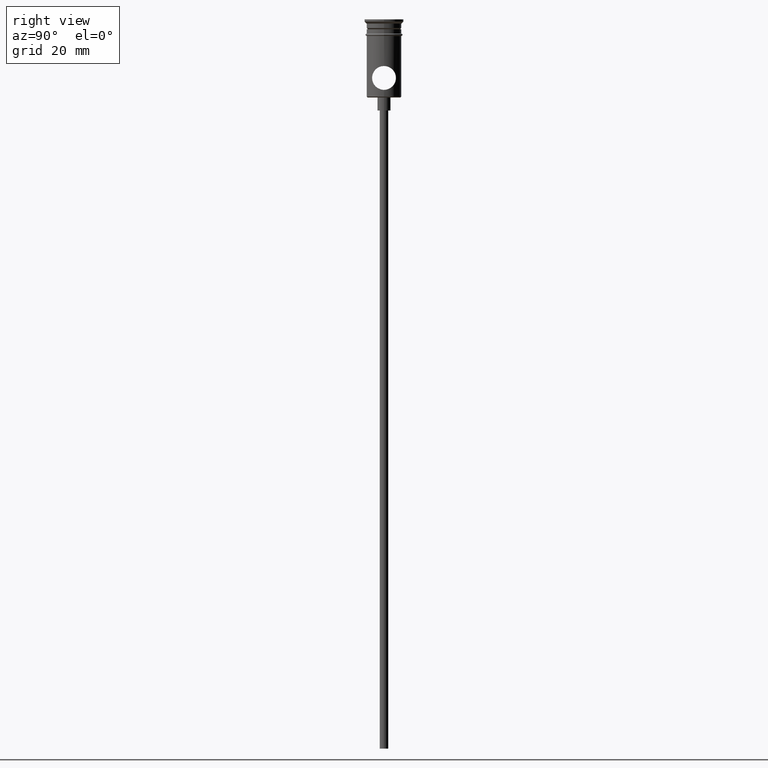
[diagram: clean part render]
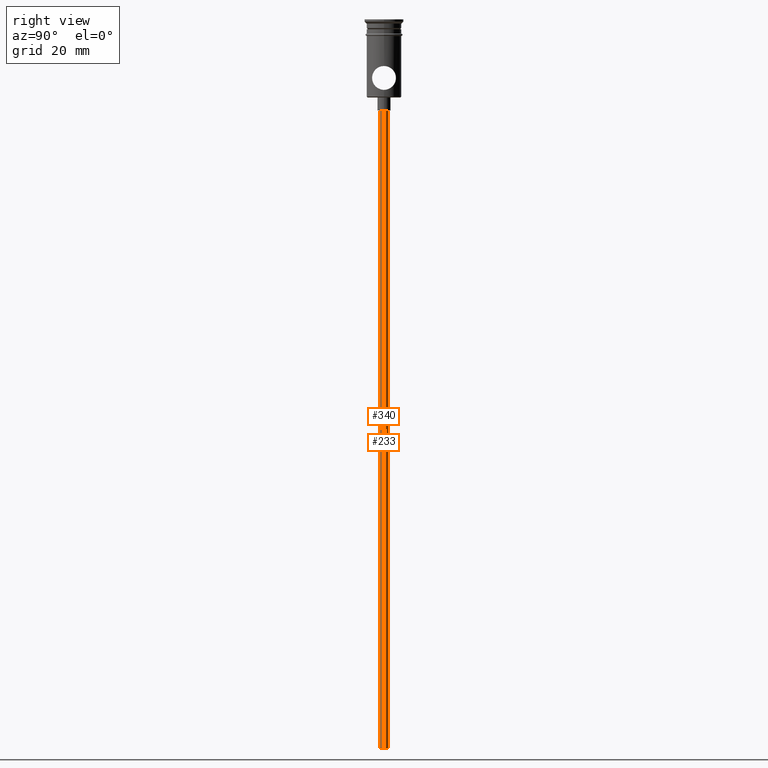
[diagram: same view with one multi-face feature highlighted, each face labeled with its STEP entity id]
A machine part, right view. The highlighted faces form ONE feature: a constant-radius fillet chain: 2 tangent blend faces with common blend radius 1 mm. The faces share edges in the B-rep.
Their STEP definitions:
[1] entity #233 (Cylinder):
#76 = DIRECTION ( 'NONE',  ( -1.000000000000000000, 0.000000000000000000, 0.000000000000000000 ) ) ;
#79 = EDGE_CURVE ( 'NONE', #858, #708, #371, .T. ) ;
#94 = AXIS2_PLACEMENT_3D ( 'NONE', #1191, #423, #646 ) ;
#115 = DIRECTION ( 'NONE',  ( -0.000000000000000000, -0.000000000000000000, 1.000000000000000000 ) ) ;
#175 = AXIS2_PLACEMENT_3D ( 'NONE', #1313, #115, #439 ) ;
#198 = VERTEX_POINT ( 'NONE', #973 ) ;
#233 = ADVANCED_FACE ( 'NONE', ( #1189 ), #1336, .T. ) ;
#253 = ORIENTED_EDGE ( 'NONE', *, *, #1249, .T. ) ;
#269 = DIRECTION ( 'NONE',  ( -0.000000000000000000, -0.000000000000000000, 1.000000000000000000 ) ) ;
#371 = LINE ( 'NONE', #1138, #862 ) ;
#391 = CIRCLE ( 'NONE', #94, 0.9999999999999997780 ) ;
#406 = AXIS2_PLACEMENT_3D ( 'NONE', #1054, #1273, #76 ) ;
#423 = DIRECTION ( 'NONE',  ( 0.000000000000000000, 0.000000000000000000, -1.000000000000000000 ) ) ;
#434 = CARTESIAN_POINT ( 'NONE',  ( 0.9999999999999997780, 0.000000000000000000, -167.9999999999999716 ) ) ;
#439 = DIRECTION ( 'NONE',  ( 1.000000000000000000, 0.000000000000000000, 0.000000000000000000 ) ) ;
#502 = VECTOR ( 'NONE', #1194, 1000.000000000000000 ) ;
#559 = EDGE_CURVE ( 'NONE', #198, #1403, #989, .T. ) ;
#646 = DIRECTION ( 'NONE',  ( -1.000000000000000000, 0.000000000000000000, 0.000000000000000000 ) ) ;
#655 = CARTESIAN_POINT ( 'NONE',  ( -0.9999999999999997780, 1.224646799147352961E-16, -167.9999999999999716 ) ) ;
#708 = VERTEX_POINT ( 'NONE', #1141 ) ;
#751 = CIRCLE ( 'NONE', #406, 0.9999999999999997780 ) ;
#846 = ORIENTED_EDGE ( 'NONE', *, *, #922, .F. ) ;
#858 = VERTEX_POINT ( 'NONE', #434 ) ;
#862 = VECTOR ( 'NONE', #269, 1000.000000000000000 ) ;
#922 = EDGE_CURVE ( 'NONE', #198, #858, #391, .T. ) ;
#973 = CARTESIAN_POINT ( 'NONE',  ( -0.9999999999999997780, 1.224646799147352961E-16, -167.9999999999999716 ) ) ;
#989 = LINE ( 'NONE', #655, #502 ) ;
#1009 = EDGE_LOOP ( 'NONE', ( #846, #1285, #253, #1140 ) ) ;
#1054 = CARTESIAN_POINT ( 'NONE',  ( 0.000000000000000000, 0.000000000000000000, -20.99999999999999645 ) ) ;
#1059 = CARTESIAN_POINT ( 'NONE',  ( -0.9999999999999997780, 1.224646799147352961E-16, -20.99999999999999645 ) ) ;
#1138 = CARTESIAN_POINT ( 'NONE',  ( 0.9999999999999997780, 0.000000000000000000, -167.9999999999999716 ) ) ;
#1140 = ORIENTED_EDGE ( 'NONE', *, *, #79, .F. ) ;
#1141 = CARTESIAN_POINT ( 'NONE',  ( 0.9999999999999997780, 0.000000000000000000, -20.99999999999999645 ) ) ;
#1189 = FACE_OUTER_BOUND ( 'NONE', #1009, .T. ) ;
#1191 = CARTESIAN_POINT ( 'NONE',  ( 0.000000000000000000, 0.000000000000000000, -167.9999999999999716 ) ) ;
#1194 = DIRECTION ( 'NONE',  ( -0.000000000000000000, -0.000000000000000000, 1.000000000000000000 ) ) ;
#1249 = EDGE_CURVE ( 'NONE', #1403, #708, #751, .T. ) ;
#1273 = DIRECTION ( 'NONE',  ( 0.000000000000000000, 0.000000000000000000, -1.000000000000000000 ) ) ;
#1285 = ORIENTED_EDGE ( 'NONE', *, *, #559, .T. ) ;
#1313 = CARTESIAN_POINT ( 'NONE',  ( 0.000000000000000000, 0.000000000000000000, -167.9999999999999716 ) ) ;
#1336 = CYLINDRICAL_SURFACE ( 'NONE', #175, 0.9999999999999997780 ) ;
#1403 = VERTEX_POINT ( 'NONE', #1059 ) ;
[2] entity #340 (Cylinder):
#7 = EDGE_LOOP ( 'NONE', ( #573, #783, #638, #207 ) ) ;
#79 = EDGE_CURVE ( 'NONE', #858, #708, #371, .T. ) ;
#198 = VERTEX_POINT ( 'NONE', #973 ) ;
#207 = ORIENTED_EDGE ( 'NONE', *, *, #720, .T. ) ;
#269 = DIRECTION ( 'NONE',  ( -0.000000000000000000, -0.000000000000000000, 1.000000000000000000 ) ) ;
#332 = DIRECTION ( 'NONE',  ( 1.000000000000000000, 0.000000000000000000, 0.000000000000000000 ) ) ;
#340 = ADVANCED_FACE ( 'NONE', ( #1205 ), #781, .T. ) ;
#371 = LINE ( 'NONE', #1138, #862 ) ;
#380 = CARTESIAN_POINT ( 'NONE',  ( 0.000000000000000000, 0.000000000000000000, -167.9999999999999716 ) ) ;
#434 = CARTESIAN_POINT ( 'NONE',  ( 0.9999999999999997780, 0.000000000000000000, -167.9999999999999716 ) ) ;
#445 = DIRECTION ( 'NONE',  ( -0.000000000000000000, -0.000000000000000000, 1.000000000000000000 ) ) ;
#502 = VECTOR ( 'NONE', #1194, 1000.000000000000000 ) ;
#559 = EDGE_CURVE ( 'NONE', #198, #1403, #989, .T. ) ;
#571 = CARTESIAN_POINT ( 'NONE',  ( 0.000000000000000000, 0.000000000000000000, -167.9999999999999716 ) ) ;
#573 = ORIENTED_EDGE ( 'NONE', *, *, #559, .F. ) ;
#638 = ORIENTED_EDGE ( 'NONE', *, *, #79, .T. ) ;
#641 = CIRCLE ( 'NONE', #1143, 0.9999999999999997780 ) ;
#655 = CARTESIAN_POINT ( 'NONE',  ( -0.9999999999999997780, 1.224646799147352961E-16, -167.9999999999999716 ) ) ;
#661 = DIRECTION ( 'NONE',  ( -1.000000000000000000, 0.000000000000000000, 0.000000000000000000 ) ) ;
#689 = CIRCLE ( 'NONE', #1260, 0.9999999999999997780 ) ;
#708 = VERTEX_POINT ( 'NONE', #1141 ) ;
#720 = EDGE_CURVE ( 'NONE', #708, #1403, #641, .T. ) ;
#781 = CYLINDRICAL_SURFACE ( 'NONE', #1296, 0.9999999999999997780 ) ;
#783 = ORIENTED_EDGE ( 'NONE', *, *, #840, .F. ) ;
#840 = EDGE_CURVE ( 'NONE', #858, #198, #689, .T. ) ;
#858 = VERTEX_POINT ( 'NONE', #434 ) ;
#862 = VECTOR ( 'NONE', #269, 1000.000000000000000 ) ;
#973 = CARTESIAN_POINT ( 'NONE',  ( -0.9999999999999997780, 1.224646799147352961E-16, -167.9999999999999716 ) ) ;
#989 = LINE ( 'NONE', #655, #502 ) ;
#1037 = DIRECTION ( 'NONE',  ( 0.000000000000000000, 0.000000000000000000, -1.000000000000000000 ) ) ;
#1059 = CARTESIAN_POINT ( 'NONE',  ( -0.9999999999999997780, 1.224646799147352961E-16, -20.99999999999999645 ) ) ;
#1061 = DIRECTION ( 'NONE',  ( -1.000000000000000000, 0.000000000000000000, 0.000000000000000000 ) ) ;
#1088 = DIRECTION ( 'NONE',  ( 0.000000000000000000, 0.000000000000000000, -1.000000000000000000 ) ) ;
#1138 = CARTESIAN_POINT ( 'NONE',  ( 0.9999999999999997780, 0.000000000000000000, -167.9999999999999716 ) ) ;
#1141 = CARTESIAN_POINT ( 'NONE',  ( 0.9999999999999997780, 0.000000000000000000, -20.99999999999999645 ) ) ;
#1143 = AXIS2_PLACEMENT_3D ( 'NONE', #1167, #1037, #1061 ) ;
#1167 = CARTESIAN_POINT ( 'NONE',  ( 0.000000000000000000, 0.000000000000000000, -20.99999999999999645 ) ) ;
#1194 = DIRECTION ( 'NONE',  ( -0.000000000000000000, -0.000000000000000000, 1.000000000000000000 ) ) ;
#1205 = FACE_OUTER_BOUND ( 'NONE', #7, .T. ) ;
#1260 = AXIS2_PLACEMENT_3D ( 'NONE', #380, #1088, #661 ) ;
#1296 = AXIS2_PLACEMENT_3D ( 'NONE', #571, #445, #332 ) ;
#1403 = VERTEX_POINT ( 'NONE', #1059 ) ;